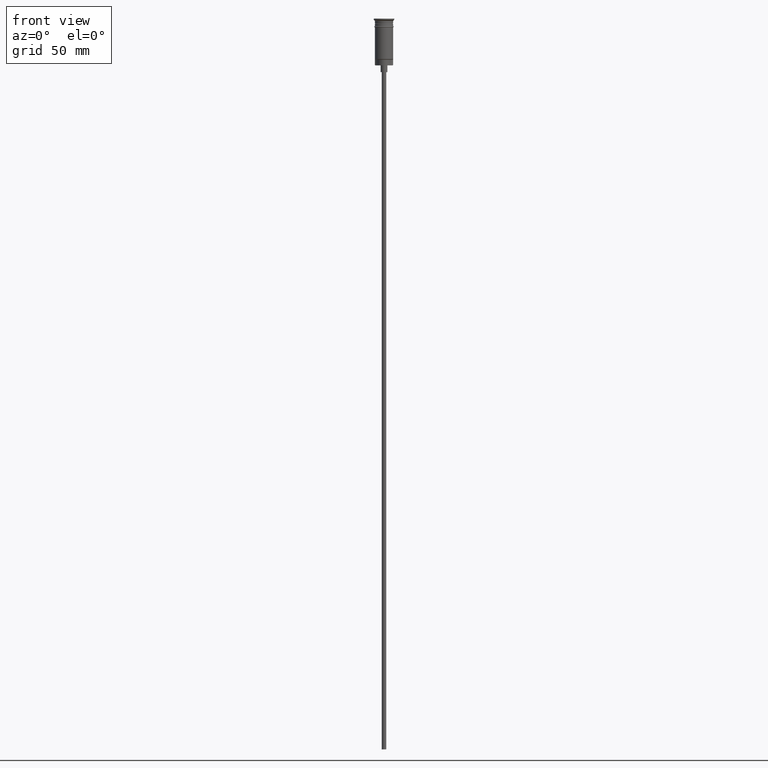
[diagram: clean part render]
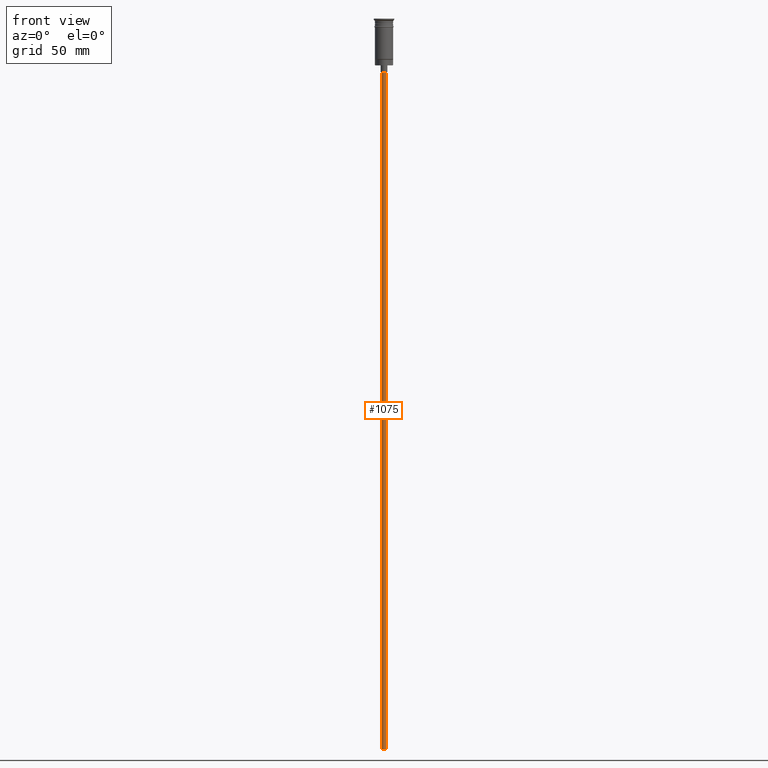
[diagram: same view with one face highlighted and labeled with its STEP entity id]
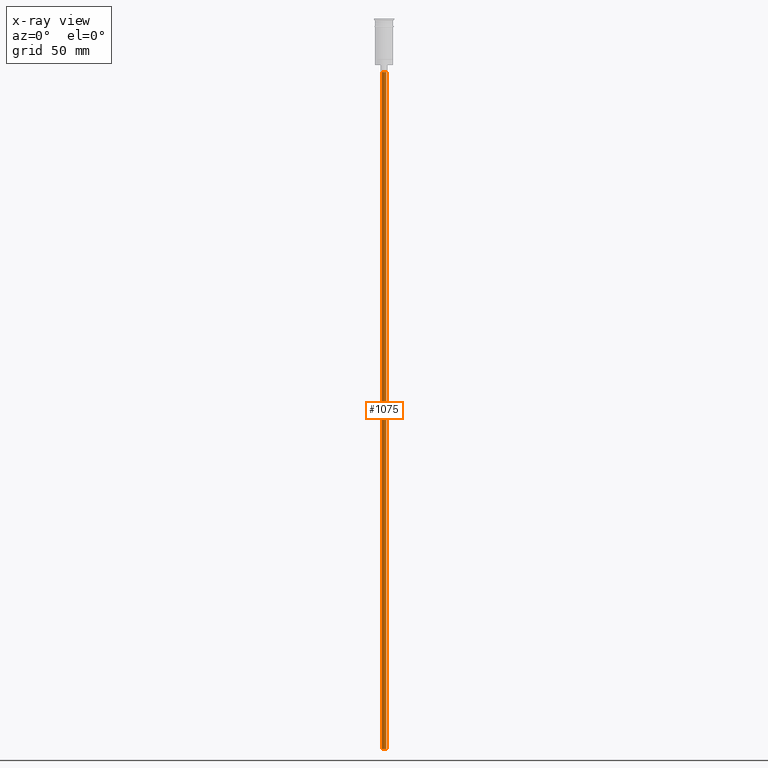
[diagram: x-ray of the same camera — body ghosted, the highlighted face saturated]
A machine part, front view. The second image highlights one B-rep face of the part: STEP entity #1075.
The next image is the same camera in x-ray: the body ghosted, the highlighted face saturated — about 0% of this face is hidden behind the body in this view.
In plain terms, the highlighted cylindrical surface (edge-blend (fillet) strip) has radius 1 mm, axis along (-0, -0, 1).
Its self-contained STEP definition (entity closure, byte-faithful):
#97 = VERTEX_POINT ( 'NONE', #340 ) ;
#127 = CARTESIAN_POINT ( 'NONE',  ( 0.000000000000000000, 0.000000000000000000, -320.5000000000000000 ) ) ;
#223 = FACE_OUTER_BOUND ( 'NONE', #1051, .T. ) ;
#332 = CYLINDRICAL_SURFACE ( 'NONE', #1264, 0.9999999999999997780 ) ;
#340 = CARTESIAN_POINT ( 'NONE',  ( -0.9999999999999997780, 1.224646799147352961E-16, -23.49999999999999645 ) ) ;
#346 = CIRCLE ( 'NONE', #1178, 0.9999999999999997780 ) ;
#374 = AXIS2_PLACEMENT_3D ( 'NONE', #127, #1603, #849 ) ;
#445 = CARTESIAN_POINT ( 'NONE',  ( 0.000000000000000000, 0.000000000000000000, -320.5000000000000000 ) ) ;
#500 = VECTOR ( 'NONE', #1454, 1000.000000000000000 ) ;
#501 = CIRCLE ( 'NONE', #374, 0.9999999999999997780 ) ;
#530 = EDGE_CURVE ( 'NONE', #1201, #97, #1192, .T. ) ;
#578 = CARTESIAN_POINT ( 'NONE',  ( -0.9999999999999997780, 1.224646799147352961E-16, -320.5000000000000000 ) ) ;
#655 = VECTOR ( 'NONE', #1448, 1000.000000000000000 ) ;
#698 = VERTEX_POINT ( 'NONE', #815 ) ;
#749 = VERTEX_POINT ( 'NONE', #1497 ) ;
#774 = LINE ( 'NONE', #1173, #655 ) ;
#815 = CARTESIAN_POINT ( 'NONE',  ( 0.9999999999999997780, 0.000000000000000000, -320.5000000000000000 ) ) ;
#828 = DIRECTION ( 'NONE',  ( 1.000000000000000000, 0.000000000000000000, 0.000000000000000000 ) ) ;
#849 = DIRECTION ( 'NONE',  ( -1.000000000000000000, 0.000000000000000000, 0.000000000000000000 ) ) ;
#946 = CARTESIAN_POINT ( 'NONE',  ( 0.000000000000000000, 0.000000000000000000, -23.49999999999999645 ) ) ;
#950 = EDGE_CURVE ( 'NONE', #698, #749, #774, .T. ) ;
#1037 = ORIENTED_EDGE ( 'NONE', *, *, #1064, .T. ) ;
#1051 = EDGE_LOOP ( 'NONE', ( #1111, #1450, #1419, #1037 ) ) ;
#1064 = EDGE_CURVE ( 'NONE', #749, #97, #346, .T. ) ;
#1067 = DIRECTION ( 'NONE',  ( 0.000000000000000000, 0.000000000000000000, -1.000000000000000000 ) ) ;
#1075 = ADVANCED_FACE ( 'NONE', ( #223 ), #332, .T. ) ;
#1111 = ORIENTED_EDGE ( 'NONE', *, *, #530, .F. ) ;
#1127 = EDGE_CURVE ( 'NONE', #698, #1201, #501, .T. ) ;
#1173 = CARTESIAN_POINT ( 'NONE',  ( 0.9999999999999997780, 0.000000000000000000, -320.5000000000000000 ) ) ;
#1178 = AXIS2_PLACEMENT_3D ( 'NONE', #946, #1067, #1563 ) ;
#1192 = LINE ( 'NONE', #578, #500 ) ;
#1201 = VERTEX_POINT ( 'NONE', #1237 ) ;
#1237 = CARTESIAN_POINT ( 'NONE',  ( -0.9999999999999997780, 1.224646799147352961E-16, -320.5000000000000000 ) ) ;
#1264 = AXIS2_PLACEMENT_3D ( 'NONE', #445, #1441, #828 ) ;
#1419 = ORIENTED_EDGE ( 'NONE', *, *, #950, .T. ) ;
#1441 = DIRECTION ( 'NONE',  ( -0.000000000000000000, -0.000000000000000000, 1.000000000000000000 ) ) ;
#1448 = DIRECTION ( 'NONE',  ( -0.000000000000000000, -0.000000000000000000, 1.000000000000000000 ) ) ;
#1450 = ORIENTED_EDGE ( 'NONE', *, *, #1127, .F. ) ;
#1454 = DIRECTION ( 'NONE',  ( -0.000000000000000000, -0.000000000000000000, 1.000000000000000000 ) ) ;
#1497 = CARTESIAN_POINT ( 'NONE',  ( 0.9999999999999997780, 0.000000000000000000, -23.49999999999999645 ) ) ;
#1563 = DIRECTION ( 'NONE',  ( -1.000000000000000000, 0.000000000000000000, 0.000000000000000000 ) ) ;
#1603 = DIRECTION ( 'NONE',  ( 0.000000000000000000, 0.000000000000000000, -1.000000000000000000 ) ) ;